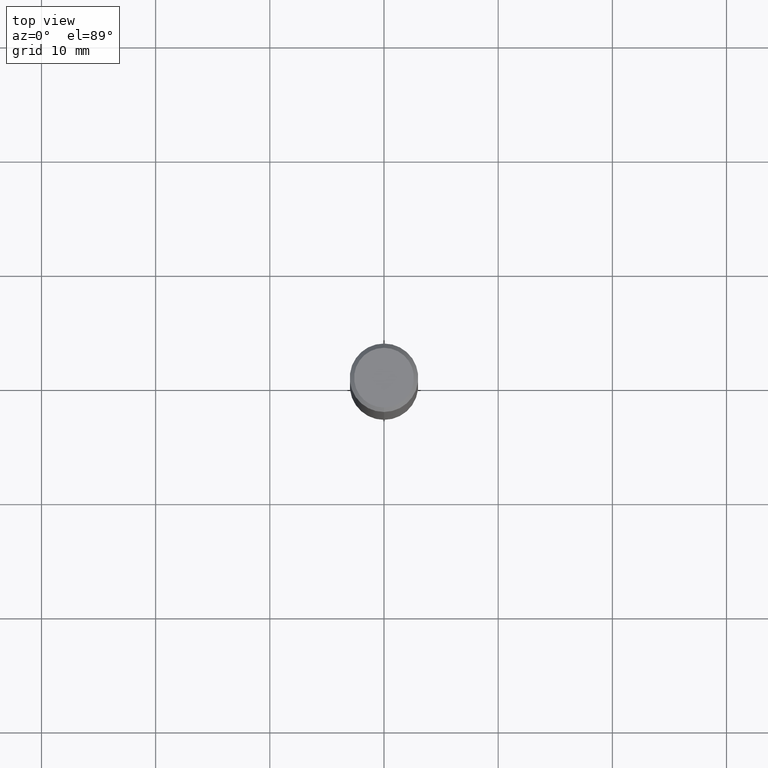
[diagram: clean part render]
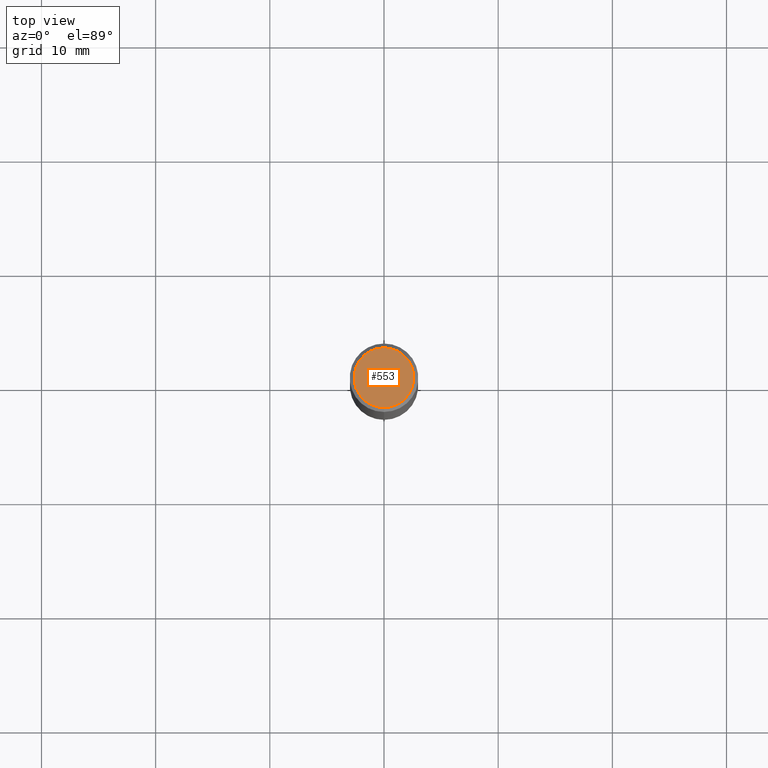
[diagram: same view with one face highlighted and labeled with its STEP entity id]
A machine part, top view. The second image highlights one B-rep face of the part: STEP entity #553.
In plain terms, the highlighted planar face has unit normal (0, -0, -1).
Its self-contained STEP definition (entity closure, byte-faithful):
#3 = VERTEX_POINT ( 'NONE', #11 ) ;
#11 = CARTESIAN_POINT ( 'NONE',  ( 7.723156721521011834E-16, 0.1031000000000000111, -3.887509258146911569E-16 ) ) ;
#34 = CARTESIAN_POINT ( 'NONE',  ( 7.199434520694541042E-16, 0.1031000000000000111, -1.353049607272557930E-16 ) ) ;
#41 = CARTESIAN_POINT ( 'NONE',  ( 7.060985138204549542E-46, -1.004259905542615459E-31, -2.881853128362451060E-17 ) ) ;
#69 = CIRCLE ( 'NONE', #366, 0.1031000000000000111 ) ;
#116 = CARTESIAN_POINT ( 'NONE',  ( -7.587710785535310407E-16, -0.1031000000000000111, 3.311138632474420741E-16 ) ) ;
#128 = AXIS2_PLACEMENT_3D ( 'NONE', #34, #471, #430 ) ;
#151 = CIRCLE ( 'NONE', #429, 0.1031000000000000111 ) ;
#167 = DIRECTION ( 'NONE',  ( -6.982962677686265922E-15, -1.000000000000000000, 3.491099849961848218E-15 ) ) ;
#211 = PLANE ( 'NONE',  #128 ) ;
#285 = EDGE_CURVE ( 'NONE', #3, #535, #69, .T. ) ;
#295 = DIRECTION ( 'NONE',  ( -6.982962677686265922E-15, -1.000000000000000000, 3.491099849961848218E-15 ) ) ;
#336 = ORIENTED_EDGE ( 'NONE', *, *, #433, .T. ) ;
#344 = DIRECTION ( 'NONE',  ( -2.445735198447141486E-29, 3.491099849961848612E-15, 1.000000000000000000 ) ) ;
#366 = AXIS2_PLACEMENT_3D ( 'NONE', #518, #344, #295 ) ;
#388 = FACE_OUTER_BOUND ( 'NONE', #492, .T. ) ;
#429 = AXIS2_PLACEMENT_3D ( 'NONE', #41, #437, #167 ) ;
#430 = DIRECTION ( 'NONE',  ( 6.982962677686265922E-15, 1.000000000000000000, -3.491099849961848612E-15 ) ) ;
#433 = EDGE_CURVE ( 'NONE', #535, #3, #151, .T. ) ;
#436 = ORIENTED_EDGE ( 'NONE', *, *, #285, .T. ) ;
#437 = DIRECTION ( 'NONE',  ( -2.445735198447141486E-29, 3.491099849961848612E-15, 1.000000000000000000 ) ) ;
#471 = DIRECTION ( 'NONE',  ( 2.445735198447141206E-29, -3.491099849961848612E-15, -1.000000000000000000 ) ) ;
#492 = EDGE_LOOP ( 'NONE', ( #436, #336 ) ) ;
#518 = CARTESIAN_POINT ( 'NONE',  ( 7.060985138204549542E-46, -1.004259905542615459E-31, -2.881853128362451060E-17 ) ) ;
#535 = VERTEX_POINT ( 'NONE', #116 ) ;
#553 = ADVANCED_FACE ( 'NONE', ( #388 ), #211, .F. ) ;